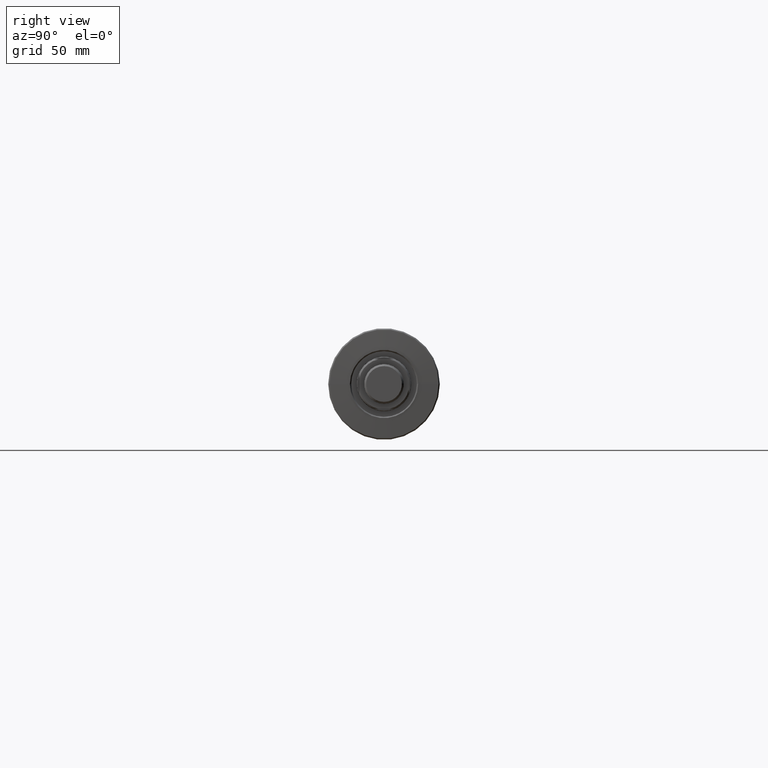
[diagram: clean part render]
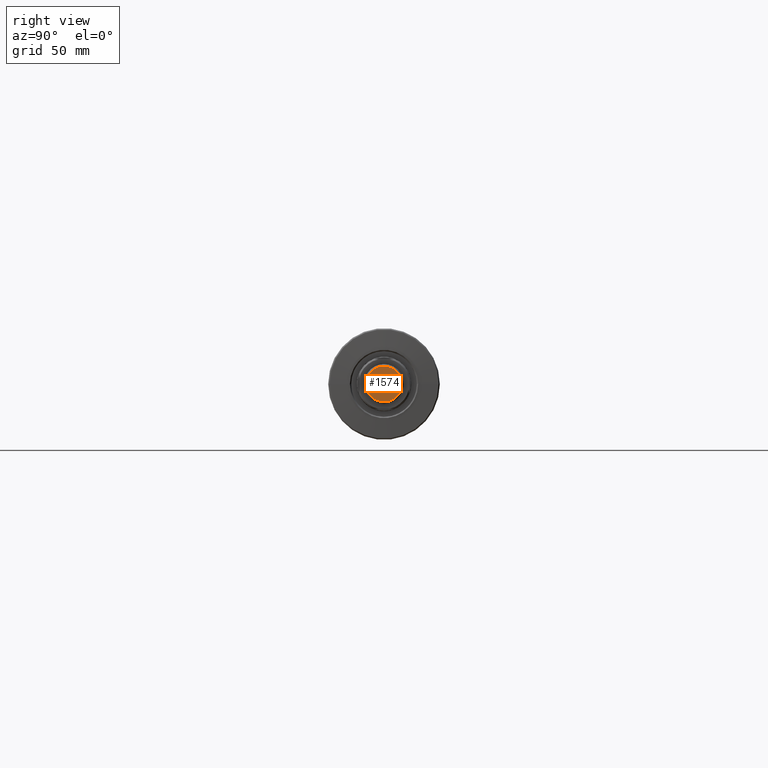
[diagram: same view with one face highlighted and labeled with its STEP entity id]
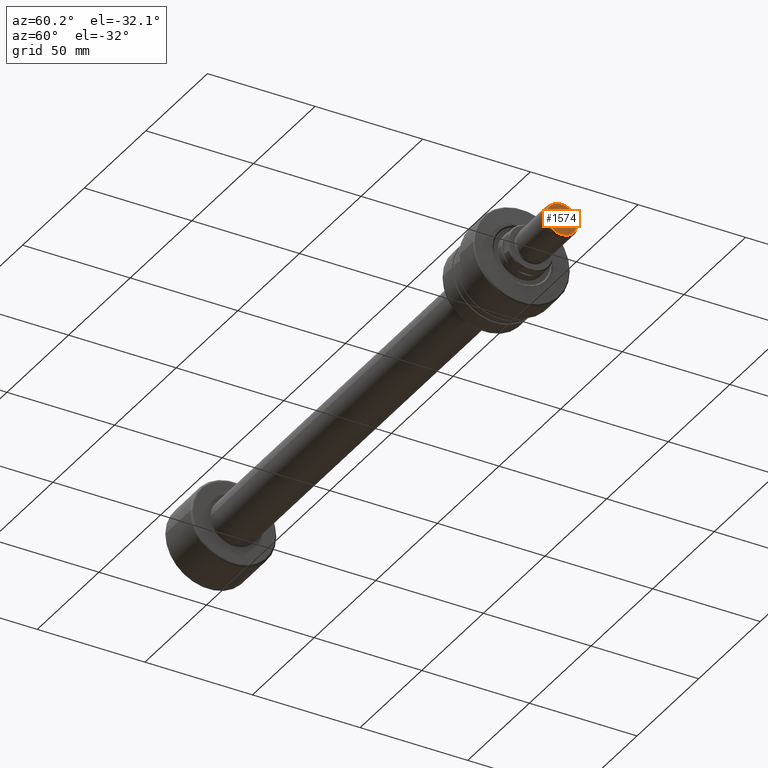
[diagram: same view with one face highlighted and labeled with its STEP entity id]
A machine part, right view. The second image highlights one B-rep face of the part: STEP entity #1574.
A second angle (auxiliary view) of the same face is appended — the face is thin or edge-on in the first view.
In plain terms, the highlighted planar face has unit normal (-1, -0, 0).
Its self-contained STEP definition (entity closure, byte-faithful):
#23 = CIRCLE ( 'NONE', #1795, 7.199999999999978861 ) ;
#96 = FACE_OUTER_BOUND ( 'NONE', #1957, .T. ) ;
#100 = CARTESIAN_POINT ( 'NONE',  ( 0.000000000000000000, 0.000000000000000000, 0.000000000000000000 ) ) ;
#107 = EDGE_CURVE ( 'NONE', #1154, #577, #23, .T. ) ;
#525 = DIRECTION ( 'NONE',  ( 1.000000000000000000, 0.000000000000000000, 0.000000000000000000 ) ) ;
#530 = DIRECTION ( 'NONE',  ( 1.000000000000000000, 0.000000000000000000, 0.000000000000000000 ) ) ;
#555 = CARTESIAN_POINT ( 'NONE',  ( 0.000000000000000000, 0.000000000000000000, 0.000000000000000000 ) ) ;
#577 = VERTEX_POINT ( 'NONE', #2485 ) ;
#835 = ORIENTED_EDGE ( 'NONE', *, *, #107, .T. ) ;
#929 = DIRECTION ( 'NONE',  ( -0.000000000000000000, -0.000000000000000000, -1.000000000000000000 ) ) ;
#1134 = CARTESIAN_POINT ( 'NONE',  ( 7.199999999999978861, 0.000000000000000000, 0.000000000000000000 ) ) ;
#1154 = VERTEX_POINT ( 'NONE', #1134 ) ;
#1404 = AXIS2_PLACEMENT_3D ( 'NONE', #1610, #929, #530 ) ;
#1450 = DIRECTION ( 'NONE',  ( 0.000000000000000000, 0.000000000000000000, 1.000000000000000000 ) ) ;
#1574 = ADVANCED_FACE ( 'NONE', ( #96 ), #2555, .F. ) ;
#1610 = CARTESIAN_POINT ( 'NONE',  ( 0.000000000000000000, 0.000000000000000000, 0.000000000000000000 ) ) ;
#1792 = ORIENTED_EDGE ( 'NONE', *, *, #2805, .T. ) ;
#1795 = AXIS2_PLACEMENT_3D ( 'NONE', #100, #2098, #525 ) ;
#1813 = CIRCLE ( 'NONE', #1404, 7.199999999999978861 ) ;
#1849 = DIRECTION ( 'NONE',  ( 1.000000000000000000, 0.000000000000000000, -0.000000000000000000 ) ) ;
#1957 = EDGE_LOOP ( 'NONE', ( #835, #1792 ) ) ;
#2098 = DIRECTION ( 'NONE',  ( -0.000000000000000000, -0.000000000000000000, -1.000000000000000000 ) ) ;
#2359 = AXIS2_PLACEMENT_3D ( 'NONE', #555, #1450, #1849 ) ;
#2485 = CARTESIAN_POINT ( 'NONE',  ( -7.199999999999978861, 9.307315673519871654E-16, 0.000000000000000000 ) ) ;
#2555 = PLANE ( 'NONE',  #2359 ) ;
#2805 = EDGE_CURVE ( 'NONE', #577, #1154, #1813, .T. ) ;